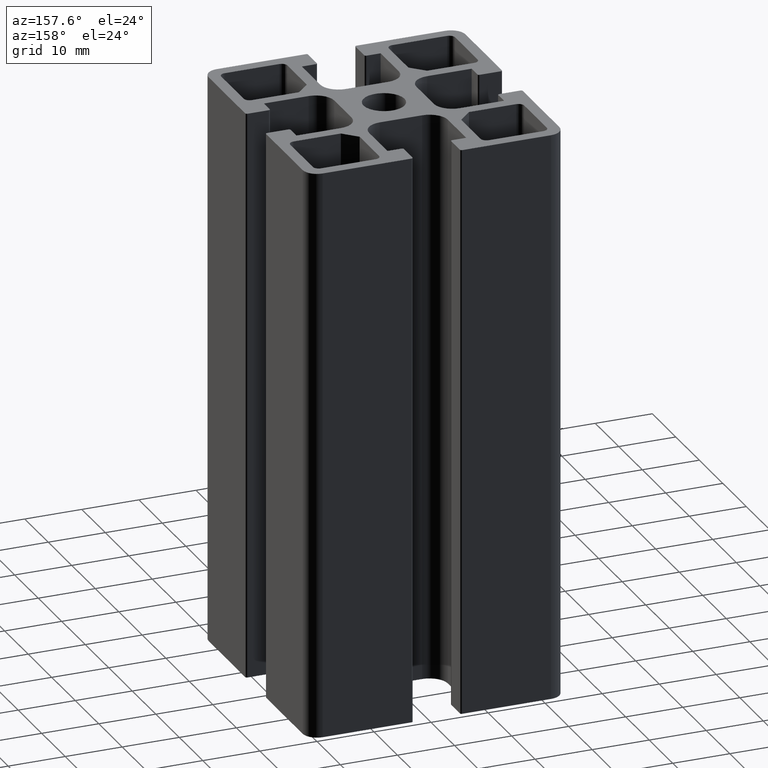
[diagram: clean part render]
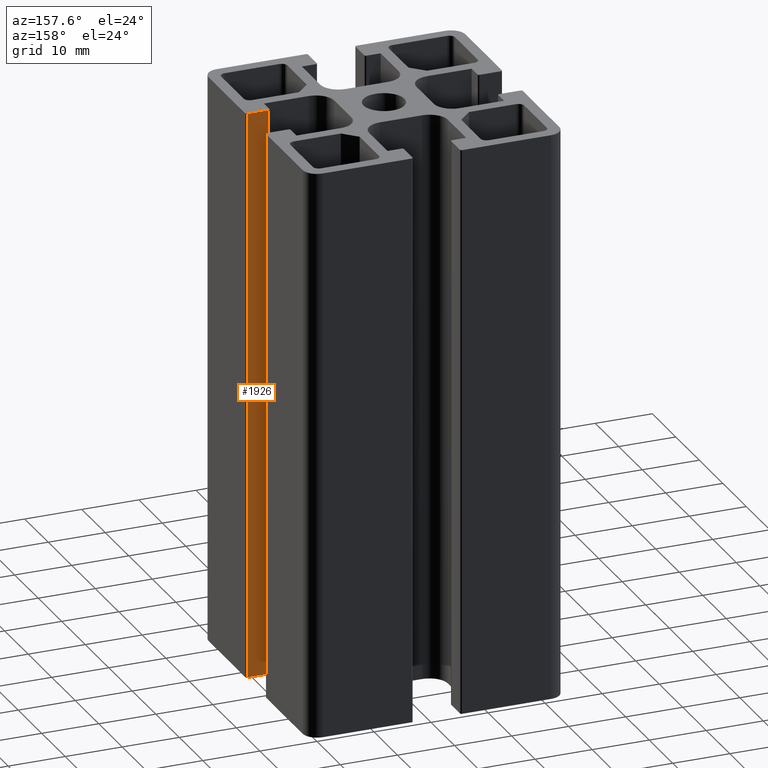
[diagram: same view with one face highlighted and labeled with its STEP entity id]
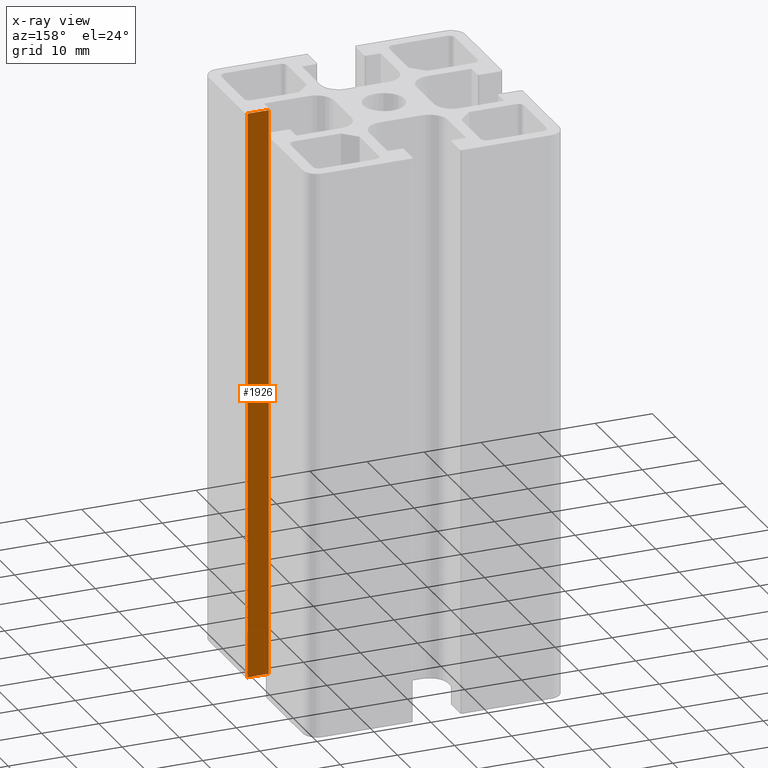
[diagram: x-ray of the same camera — body ghosted, the highlighted face saturated]
A machine part, auxiliary view. The second image highlights one B-rep face of the part: STEP entity #1926.
The next image is the same camera in x-ray: the body ghosted, the highlighted face saturated — about 0% of this face is hidden behind the body in this view.
In plain terms, the highlighted planar face has unit normal (-0, -1, 0).
Its self-contained STEP definition (entity closure, byte-faithful):
#179=FACE_OUTER_BOUND('',#279,.T.);
#279=EDGE_LOOP('',(#1376,#1377,#1378,#1379));
#423=LINE('',#2931,#631);
#424=LINE('',#2935,#632);
#425=LINE('',#2937,#633);
#426=LINE('',#2938,#634);
#631=VECTOR('',#2351,100.);
#632=VECTOR('',#2356,3.7);
#633=VECTOR('',#2357,100.);
#634=VECTOR('',#2358,3.7);
#834=VERTEX_POINT('',#2928);
#835=VERTEX_POINT('',#2930);
#836=VERTEX_POINT('',#2934);
#837=VERTEX_POINT('',#2936);
#1056=EDGE_CURVE('',#835,#834,#423,.T.);
#1058=EDGE_CURVE('',#836,#834,#424,.T.);
#1059=EDGE_CURVE('',#837,#836,#425,.T.);
#1060=EDGE_CURVE('',#835,#837,#426,.T.);
#1376=ORIENTED_EDGE('',*,*,#1058,.F.);
#1377=ORIENTED_EDGE('',*,*,#1059,.F.);
#1378=ORIENTED_EDGE('',*,*,#1060,.F.);
#1379=ORIENTED_EDGE('',*,*,#1056,.T.);
#1856=PLANE('',#2051);
#1926=ADVANCED_FACE('',(#179),#1856,.F.);
#2051=AXIS2_PLACEMENT_3D('',#2933,#2354,#2355);
#2351=DIRECTION('',(0.,0.,1.));
#2354=DIRECTION('center_axis',(-4.50090415388577E-16,-1.,0.));
#2355=DIRECTION('ref_axis',(1.,-4.44089209850063E-16,0.));
#2356=DIRECTION('',(-1.,4.50090415388577E-16,0.));
#2357=DIRECTION('',(0.,0.,1.));
#2358=DIRECTION('',(1.,-4.50090415388577E-16,0.));
#2928=CARTESIAN_POINT('',(18.5,-4.15,100.));
#2930=CARTESIAN_POINT('',(18.5,-4.15,0.));
#2931=CARTESIAN_POINT('',(18.5,-4.15,0.));
#2933=CARTESIAN_POINT('Origin',(18.5,-4.15,0.));
#2934=CARTESIAN_POINT('',(22.2,-4.15,100.));
#2935=CARTESIAN_POINT('',(9.24999999999999,-4.15,100.));
#2936=CARTESIAN_POINT('',(22.2,-4.15,0.));
#2937=CARTESIAN_POINT('',(22.2,-4.15,0.));
#2938=CARTESIAN_POINT('',(9.24999999999999,-4.15,0.));